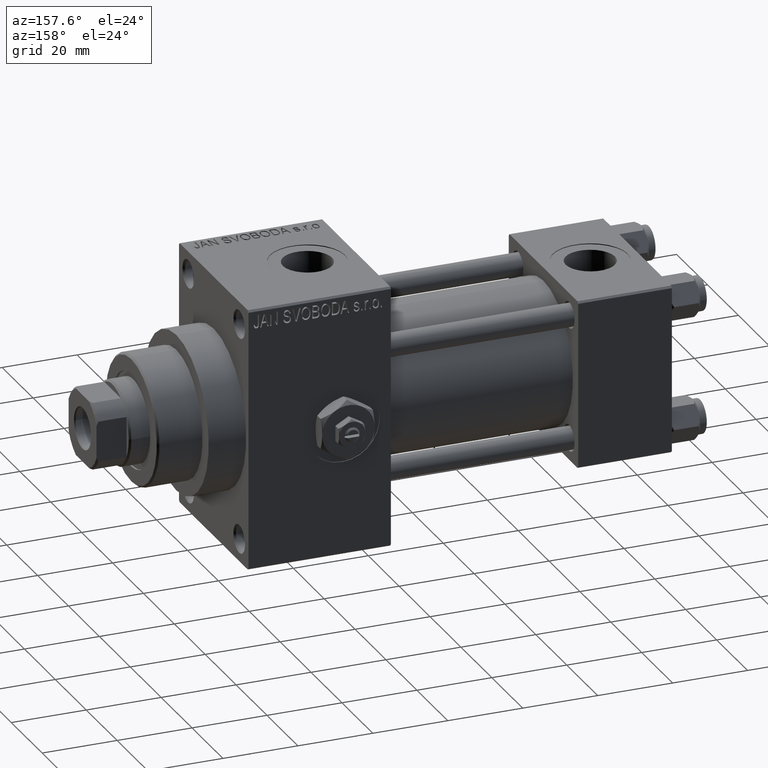
[diagram: clean part render]
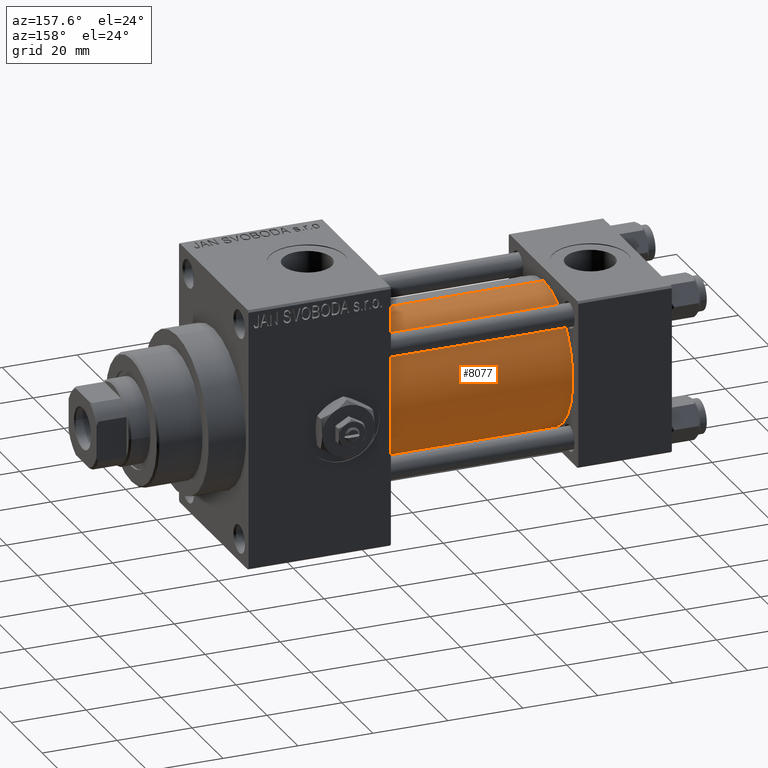
[diagram: same view with one face highlighted and labeled with its STEP entity id]
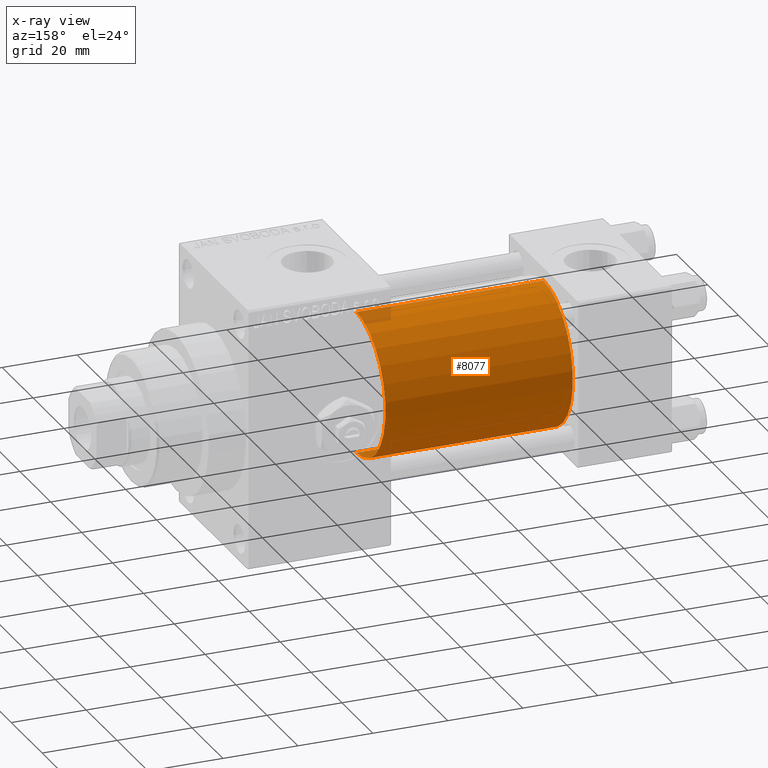
[diagram: x-ray of the same camera — body ghosted, the highlighted face saturated]
A machine part, auxiliary view. The second image highlights one B-rep face of the part: STEP entity #8077.
The next image is the same camera in x-ray: the body ghosted, the highlighted face saturated — about 2% of this face is hidden behind the body in this view.
In plain terms, the highlighted cylindrical surface (partial cylindrical patch) has radius 19 mm, axis along (-1, -0, -0).
Its self-contained STEP definition (entity closure, byte-faithful):
#177 = VERTEX_POINT ( 'NONE', #48698 ) ;
#536 = DIRECTION ( 'NONE',  ( -1.000000000000000000, -0.000000000000000000, -0.000000000000000000 ) ) ;
#2736 = AXIS2_PLACEMENT_3D ( 'NONE', #26777, #3333, #26543 ) ;
#3333 = DIRECTION ( 'NONE',  ( -1.000000000000000000, -0.000000000000000000, -0.000000000000000000 ) ) ;
#3350 = DIRECTION ( 'NONE',  ( 0.000000000000000000, 0.000000000000000000, -1.000000000000000000 ) ) ;
#3547 = VERTEX_POINT ( 'NONE', #19852 ) ;
#4242 = CARTESIAN_POINT ( 'NONE',  ( 75.00000000000001421, -2.752562955852396712E-16, -19.00000000000000000 ) ) ;
#4537 = ORIENTED_EDGE ( 'NONE', *, *, #5449, .F. ) ;
#5449 = EDGE_CURVE ( 'NONE', #17183, #3547, #40488, .T. ) ;
#6280 = EDGE_LOOP ( 'NONE', ( #4537, #43105, #22715, #13886 ) ) ;
#6913 = VECTOR ( 'NONE', #536, 1000.000000000000000 ) ;
#7037 = FACE_OUTER_BOUND ( 'NONE', #6280, .T. ) ;
#8077 = ADVANCED_FACE ( 'NONE', ( #7037 ), #33443, .T. ) ;
#10750 = EDGE_CURVE ( 'NONE', #17183, #177, #11654, .T. ) ;
#11654 = LINE ( 'NONE', #4242, #6913 ) ;
#11838 = CIRCLE ( 'NONE', #42582, 19.00000000000000000 ) ;
#12867 = CARTESIAN_POINT ( 'NONE',  ( 75.00000000000001421, -2.602085213965210642E-15, 19.00000000000000000 ) ) ;
#13886 = ORIENTED_EDGE ( 'NONE', *, *, #17663, .F. ) ;
#15679 = CARTESIAN_POINT ( 'NONE',  ( 25.00000000000000000, -2.602085213965210642E-15, 19.00000000000000000 ) ) ;
#15980 = EDGE_CURVE ( 'NONE', #177, #36868, #11838, .T. ) ;
#17183 = VERTEX_POINT ( 'NONE', #22597 ) ;
#17419 = CARTESIAN_POINT ( 'NONE',  ( 25.00000000000000000, -2.602085213965210642E-15, 0.000000000000000000 ) ) ;
#17663 = EDGE_CURVE ( 'NONE', #3547, #36868, #31615, .T. ) ;
#19852 = CARTESIAN_POINT ( 'NONE',  ( 75.00000000000001421, -2.602085213965210642E-15, 19.00000000000000000 ) ) ;
#22597 = CARTESIAN_POINT ( 'NONE',  ( 75.00000000000001421, -2.752562955852396712E-16, -19.00000000000000000 ) ) ;
#22715 = ORIENTED_EDGE ( 'NONE', *, *, #15980, .T. ) ;
#25312 = DIRECTION ( 'NONE',  ( 0.000000000000000000, 0.000000000000000000, 1.000000000000000000 ) ) ;
#25583 = DIRECTION ( 'NONE',  ( 1.000000000000000000, 0.000000000000000000, 0.000000000000000000 ) ) ;
#26543 = DIRECTION ( 'NONE',  ( 0.000000000000000000, 0.000000000000000000, 1.000000000000000000 ) ) ;
#26777 = CARTESIAN_POINT ( 'NONE',  ( 75.00000000000001421, -2.602085213965210642E-15, 0.000000000000000000 ) ) ;
#31147 = DIRECTION ( 'NONE',  ( -1.000000000000000000, -0.000000000000000000, -0.000000000000000000 ) ) ;
#31615 = LINE ( 'NONE', #12867, #41034 ) ;
#33414 = AXIS2_PLACEMENT_3D ( 'NONE', #44309, #25583, #3350 ) ;
#33443 = CYLINDRICAL_SURFACE ( 'NONE', #2736, 19.00000000000000000 ) ;
#36868 = VERTEX_POINT ( 'NONE', #15679 ) ;
#40488 = CIRCLE ( 'NONE', #33414, 19.00000000000000000 ) ;
#41034 = VECTOR ( 'NONE', #31147, 1000.000000000000000 ) ;
#42582 = AXIS2_PLACEMENT_3D ( 'NONE', #17419, #44053, #25312 ) ;
#43105 = ORIENTED_EDGE ( 'NONE', *, *, #10750, .T. ) ;
#44053 = DIRECTION ( 'NONE',  ( 1.000000000000000000, -0.000000000000000000, 0.000000000000000000 ) ) ;
#44309 = CARTESIAN_POINT ( 'NONE',  ( 75.00000000000001421, -2.602085213965210642E-15, 0.000000000000000000 ) ) ;
#48698 = CARTESIAN_POINT ( 'NONE',  ( 25.00000000000000000, -2.752562955852396712E-16, -19.00000000000000000 ) ) ;